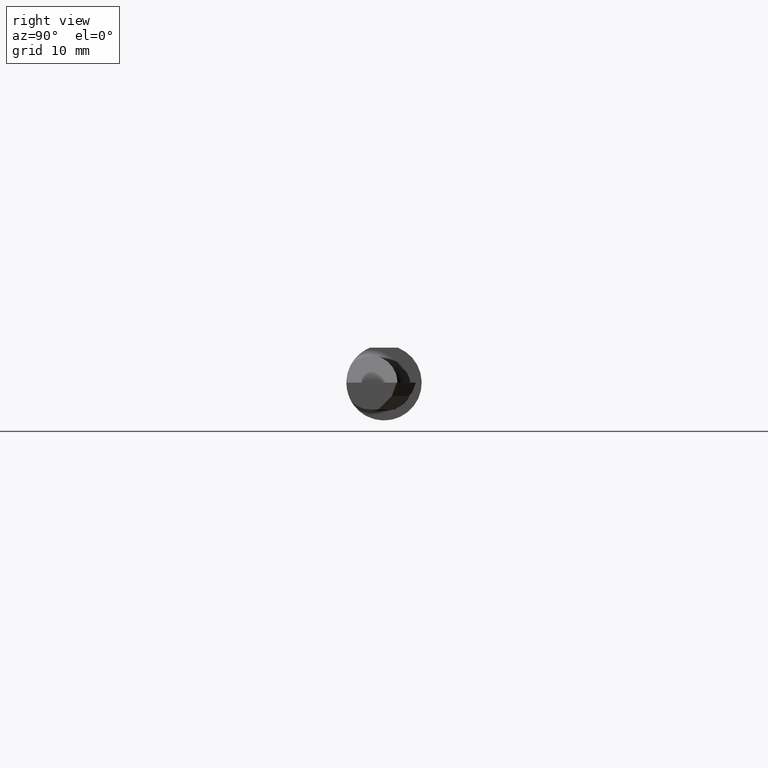
[diagram: clean part render]
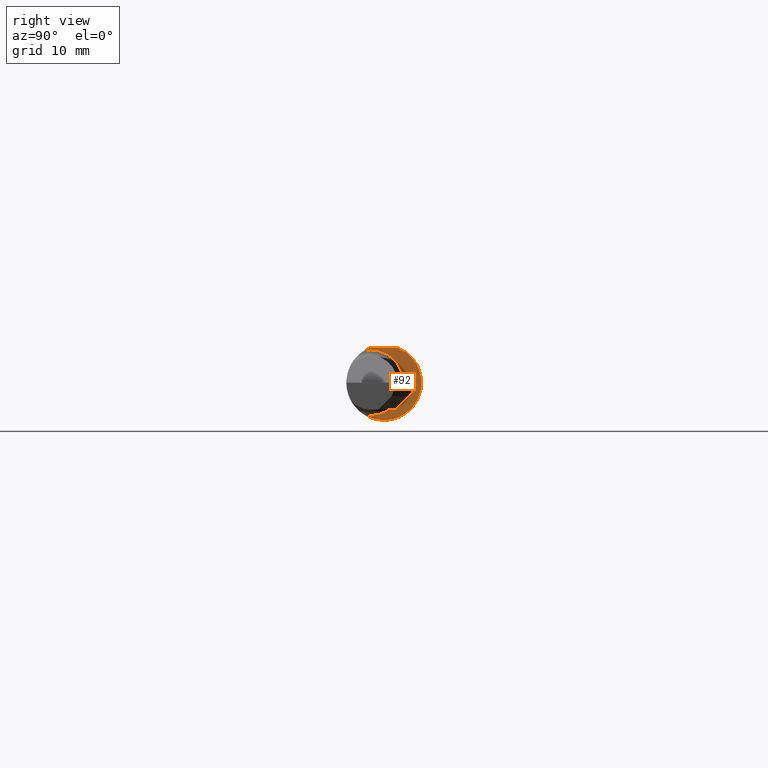
[diagram: same view with one face highlighted and labeled with its STEP entity id]
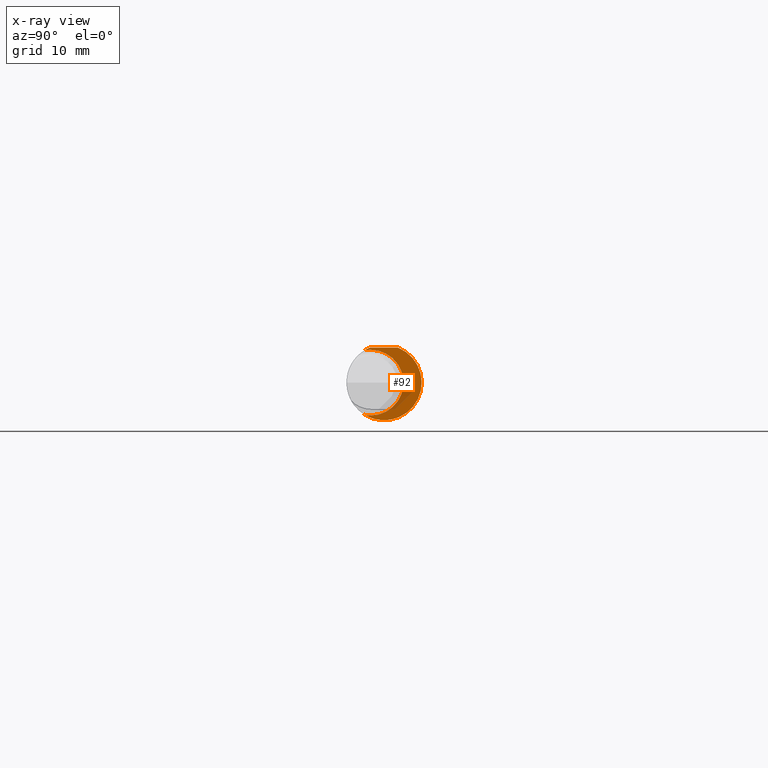
[diagram: x-ray of the same camera — body ghosted, the highlighted face saturated]
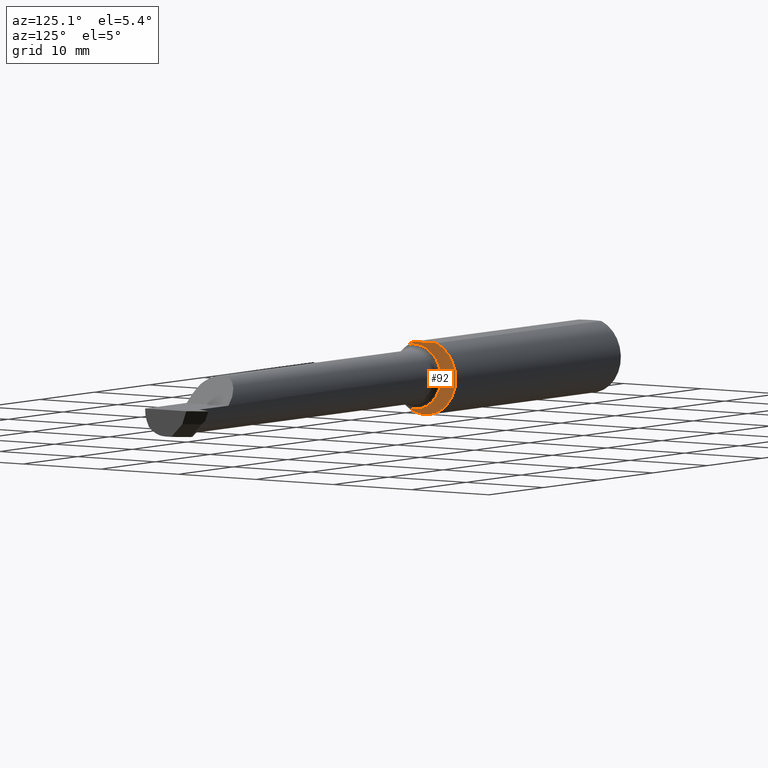
[diagram: same view with one face highlighted and labeled with its STEP entity id]
A machine part, right view. The second image highlights one B-rep face of the part: STEP entity #92.
The next image is the same camera in x-ray: the body ghosted, the highlighted face saturated — about 15% of this face is hidden behind the body in this view.
A second angle (auxiliary view) of the same face is appended — the face is thin or edge-on in the first view.
In plain terms, the highlighted planar face has unit normal (1, 0, 0).
Its self-contained STEP definition (entity closure, byte-faithful):
#10 = ORIENTED_EDGE ( 'NONE', *, *, #154, .T. ) ;
#13 = VERTEX_POINT ( 'NONE', #409 ) ;
#19 = AXIS2_PLACEMENT_3D ( 'NONE', #233, #695, #447 ) ;
#50 = CIRCLE ( 'NONE', #601, 0.1360000000000000098 ) ;
#92 = ADVANCED_FACE ( 'NONE', ( #796 ), #208, .T. ) ;
#139 = DIRECTION ( 'NONE',  ( 0.000000000000000000, 0.000000000000000000, -1.000000000000000000 ) ) ;
#154 = EDGE_CURVE ( 'NONE', #296, #288, #837, .T. ) ;
#175 = ORIENTED_EDGE ( 'NONE', *, *, #587, .T. ) ;
#197 = CIRCLE ( 'NONE', #290, 0.1360000000000000098 ) ;
#208 = PLANE ( 'NONE',  #425 ) ;
#223 = CARTESIAN_POINT ( 'NONE',  ( 1.205000000000000293, 0.000000000000000000, 0.000000000000000000 ) ) ;
#233 = CARTESIAN_POINT ( 'NONE',  ( 1.205000000000000293, 0.000000000000000000, 0.000000000000000000 ) ) ;
#288 = VERTEX_POINT ( 'NONE', #759 ) ;
#290 = AXIS2_PLACEMENT_3D ( 'NONE', #509, #726, #660 ) ;
#296 = VERTEX_POINT ( 'NONE', #604 ) ;
#323 = DIRECTION ( 'NONE',  ( 0.000000000000000000, 7.093263402666859258E-15, -1.000000000000000000 ) ) ;
#327 = EDGE_CURVE ( 'NONE', #13, #665, #377, .T. ) ;
#342 = ORIENTED_EDGE ( 'NONE', *, *, #919, .T. ) ;
#364 = DIRECTION ( 'NONE',  ( -1.000000000000000000, -0.000000000000000000, -0.000000000000000000 ) ) ;
#368 = LINE ( 'NONE', #869, #678 ) ;
#369 = CARTESIAN_POINT ( 'NONE',  ( 1.205000000000000293, 0.2559000000000000163, 0.000000000000000000 ) ) ;
#377 = CIRCLE ( 'NONE', #19, 0.1560999999999999888 ) ;
#409 = CARTESIAN_POINT ( 'NONE',  ( 1.205000000000000293, -0.08082776769509972259, -0.1335443071397166837 ) ) ;
#425 = AXIS2_PLACEMENT_3D ( 'NONE', #369, #599, #663 ) ;
#437 = DIRECTION ( 'NONE',  ( 0.000000000000000000, -1.000000000000000000, 0.000000000000000000 ) ) ;
#442 = CARTESIAN_POINT ( 'NONE',  ( 1.205000000000000293, -0.05509999999999999620, 0.000000000000000000 ) ) ;
#444 = DIRECTION ( 'NONE',  ( 0.000000000000000000, 0.000000000000000000, -1.000000000000000000 ) ) ;
#447 = DIRECTION ( 'NONE',  ( 0.000000000000000000, 0.000000000000000000, -1.000000000000000000 ) ) ;
#509 = CARTESIAN_POINT ( 'NONE',  ( 1.205000000000000293, -0.05509999999999999620, 0.000000000000000000 ) ) ;
#561 = EDGE_CURVE ( 'NONE', #741, #13, #650, .T. ) ;
#576 = EDGE_CURVE ( 'NONE', #665, #296, #368, .T. ) ;
#587 = EDGE_CURVE ( 'NONE', #696, #741, #197, .T. ) ;
#597 = EDGE_LOOP ( 'NONE', ( #10, #342, #175, #841, #606, #791 ) ) ;
#599 = DIRECTION ( 'NONE',  ( 1.000000000000000000, 0.000000000000000000, 0.000000000000000000 ) ) ;
#601 = AXIS2_PLACEMENT_3D ( 'NONE', #764, #921, #323 ) ;
#604 = CARTESIAN_POINT ( 'NONE',  ( 1.205000000000000293, -0.05756040305626796555, 0.1450999999999999512 ) ) ;
#606 = ORIENTED_EDGE ( 'NONE', *, *, #327, .T. ) ;
#612 = CARTESIAN_POINT ( 'NONE',  ( 1.205000000000000293, -0.05509999999999998233, 0.1360000000000000098 ) ) ;
#650 = CIRCLE ( 'NONE', #880, 0.1360000000000000098 ) ;
#654 = CARTESIAN_POINT ( 'NONE',  ( 1.205000000000000293, 0.05756040305626788228, 0.1450999999999999512 ) ) ;
#660 = DIRECTION ( 'NONE',  ( 0.000000000000000000, 0.000000000000000000, -1.000000000000000000 ) ) ;
#663 = DIRECTION ( 'NONE',  ( 0.000000000000000000, 0.000000000000000000, -1.000000000000000000 ) ) ;
#665 = VERTEX_POINT ( 'NONE', #654 ) ;
#678 = VECTOR ( 'NONE', #437, 39.37007874015748143 ) ;
#695 = DIRECTION ( 'NONE',  ( 1.000000000000000000, 0.000000000000000000, 0.000000000000000000 ) ) ;
#696 = VERTEX_POINT ( 'NONE', #612 ) ;
#704 = AXIS2_PLACEMENT_3D ( 'NONE', #223, #735, #444 ) ;
#726 = DIRECTION ( 'NONE',  ( -1.000000000000000000, -0.000000000000000000, -0.000000000000000000 ) ) ;
#735 = DIRECTION ( 'NONE',  ( 1.000000000000000000, 0.000000000000000000, 0.000000000000000000 ) ) ;
#741 = VERTEX_POINT ( 'NONE', #758 ) ;
#758 = CARTESIAN_POINT ( 'NONE',  ( 1.205000000000000293, -0.05509999999999999620, -0.1360000000000000098 ) ) ;
#759 = CARTESIAN_POINT ( 'NONE',  ( 1.205000000000000293, -0.08082776769509972259, 0.1335443071397166837 ) ) ;
#764 = CARTESIAN_POINT ( 'NONE',  ( 1.205000000000000293, -0.05509999999999999620, 0.000000000000000000 ) ) ;
#791 = ORIENTED_EDGE ( 'NONE', *, *, #576, .T. ) ;
#796 = FACE_OUTER_BOUND ( 'NONE', #597, .T. ) ;
#837 = CIRCLE ( 'NONE', #704, 0.1560999999999999888 ) ;
#841 = ORIENTED_EDGE ( 'NONE', *, *, #561, .T. ) ;
#869 = CARTESIAN_POINT ( 'NONE',  ( 1.205000000000000293, 0.1749999999999999889, 0.1450999999999999512 ) ) ;
#880 = AXIS2_PLACEMENT_3D ( 'NONE', #442, #364, #139 ) ;
#919 = EDGE_CURVE ( 'NONE', #288, #696, #50, .T. ) ;
#921 = DIRECTION ( 'NONE',  ( -1.000000000000000000, -0.000000000000000000, -0.000000000000000000 ) ) ;